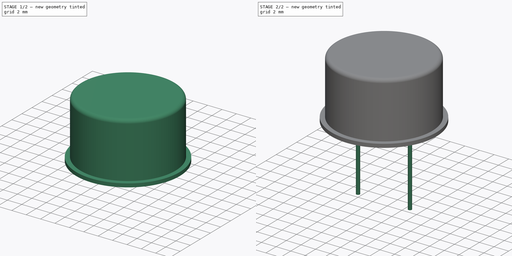
[diagram: build sequence overview — one tinted view per stage of 2, left to right]
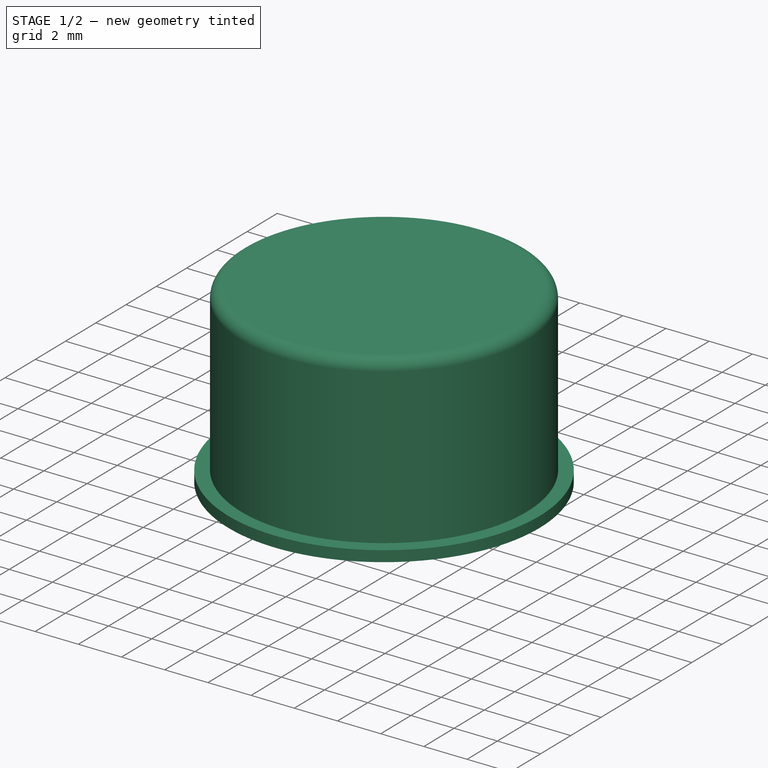
[diagram: stage 1 of 2 — iso view after this stage's code; geometry added in this stage tinted green]
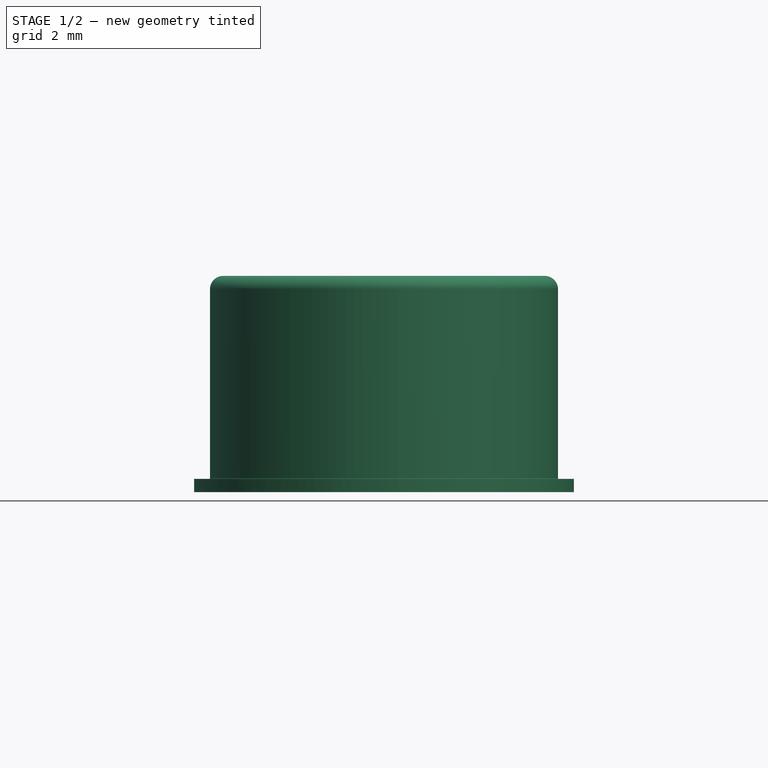
[diagram: stage 1 of 2 — front view after this stage's code; geometry added in this stage tinted green]
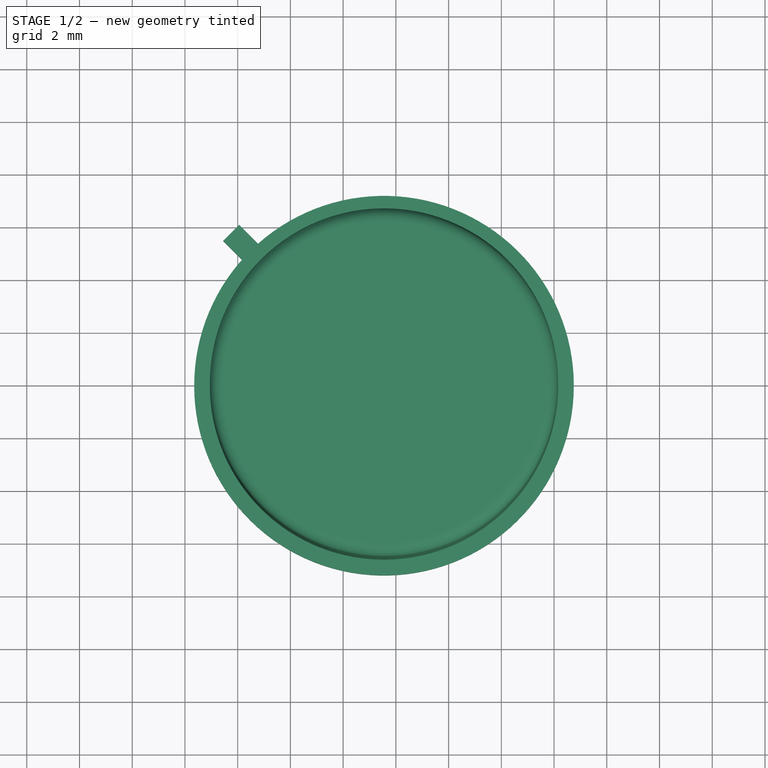
[diagram: stage 1 of 2 — top view after this stage's code; geometry added in this stage tinted green]
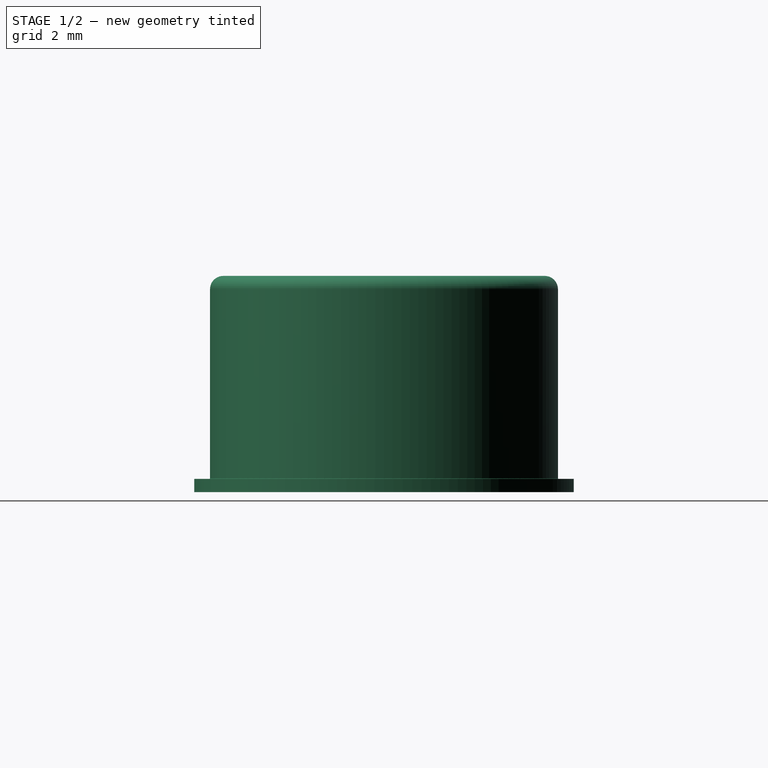
[diagram: stage 1 of 2 — right view after this stage's code; geometry added in this stage tinted green]
FCSTD DOCUMENT  (FreeCAD 0.16R6703 (Git))
Label: TO-8_2Pin
License: All rights reserved
LicenseURL: http://en.wikipedia.org/wiki/All_rights_reserved
objects: Sketcher::SketchObject×3, PartDesign::Pad×2, PartDesign::Revolution×1, Spreadsheet::Sheet×1
note: 9 computed .brp shape members not serialized (recipe doc carries the construction recipe); baked Part::Feature solids carry a one-line shape summary decoded from their .brp

FEATURE [Sketcher::SketchObject] Sketch003
  Placement = pos=(0,0,0) rot=(1,0,0;1.5708rad)
  expr: Constraints[4] = dims.pin_upper_length
  expr: Constraints[7] = dims.height
  expr: Constraints[1] = dims.Dpin / 2
  expr: Constraints[10] = dims.DBot / 2
  expr: Constraints[19] = dims.DTop / 2
  sketch-geometry (9):
    g0: LineSegment [constr] StartX=3.55 StartY=2.55067 StartZ=0 EndX=3.55 EndY=13.2 EndZ=0
    g1: LineSegment StartX=3.55 StartY=5 StartZ=0 EndX=-3.65 EndY=5 EndZ=0
    g2: LineSegment StartX=-3.65 StartY=5 StartZ=0 EndX=-3.65 EndY=5.5 EndZ=0
    g3: LineSegment StartX=3.55 StartY=13.2 StartZ=0 EndX=3.55 EndY=5 EndZ=0
    g4: LineSegment StartX=-3.65 StartY=5.5 StartZ=0 EndX=-3.0687 EndY=5.5 EndZ=0
    g5: LineSegment StartX=-3.05 StartY=5.5187 StartZ=0 EndX=-3.05 EndY=12.7 EndZ=0
    g6: LineSegment StartX=-2.55 StartY=13.2 StartZ=0 EndX=3.55 EndY=13.2 EndZ=0
    g7: ArcOfCircle CenterX=-2.55 CenterY=12.7 CenterZ=0 NormalX=0 NormalY=0 NormalZ=1 Radius=0.5 StartAngle=1.5708 EndAngle=3.14159
    g8: ArcOfCircle CenterX=-3.0687 CenterY=5.5187 CenterZ=0 NormalX=0 NormalY=0 NormalZ=1 Radius=0.0187046 StartAngle=4.71239 EndAngle=6.28319
  constraints (24):
    c: Vertical(g0)
    c: DistanceX(g-1,g0) = 3.55
    c: PointOnObject(g1,g0)
    c: Horizontal(g1)
    c: DistanceY(g-1,g1) = 5
    c: Coincident(g2,g1)
    c: Vertical(g2)
    c: DistanceY(g1,g3) = 8.2
    c: Coincident(g3,g1)
    c: DistanceY(g2,g2) = 0.5
    c: DistanceX(g1,g1) = 7.2
    c: Coincident(g4,g2)
    c: Vertical(g5)
    c: Coincident(g6,g0)
    c: Horizontal(g6)
    c: Tangent(g6,g7) = 1.5708
    c: Tangent(g5,g7) = 1.5708
    c: Tangent(g4,g8) = -1.5708
    c: Tangent(g5,g8) = -1.5708
    c: DistanceX(g5,g0) = 6.6
    c: Vertical(g3)
    c: Coincident(g0,g3)
    c: DistanceY(g5,g6) = 0.5
    c: Horizontal(g4)
FEATURE [PartDesign::Revolution] Revolution
  Angle = 360
  Axis = (0,0,10.6493)
  Base = (3.55,0,2.55067)
  Placement = pos=(0,0,0) rot=(1,0,0;1.5708rad)
  ReferenceAxis = -> Sketch003 [Axis0]
  Sketch = -> Sketch003
FEATURE [Sketcher::SketchObject] Sketch004
  Placement = pos=(0,0,5) rot=(0,0,1;0rad)
  expr: Constraints[1] = dims.Dpin / 2
  expr: Constraints[10] = dims.nibble_w
  expr: Constraints[11] = dims.DBot / 2 + dims.nibble_l
  sketch-geometry (5):
    g0: GeomPoint [constr] X=3.55 Y=0 Z=0
    g1: LineSegment StartX=3.87497 StartY=0.324967 StartZ=0 EndX=8.96614 EndY=5.41614 EndZ=0
    g2: LineSegment StartX=3.22503 StartY=-0.324967 StartZ=0 EndX=8.96614 EndY=5.41614 EndZ=0
    g3: LineSegment StartX=8.96614 StartY=5.41614 StartZ=0 EndX=8.96614 EndY=5.41614 EndZ=0
    g4: LineSegment StartX=3.22503 StartY=-0.324967 StartZ=0 EndX=3.87497 EndY=0.324967 EndZ=0
  constraints (14):
    c: PointOnObject(g0,g-1)
    c: DistanceX(g-1,g0) = 3.55
    c: Coincident(g3,g2)
    c: Coincident(g3,g1)
    c: Coincident(g4,g2)
    c: Coincident(g4,g1)
    c: PointOnObject(g0,g4)
    c: Parallel(g4,g3)
    c: Parallel(g2,g1)
    c: Perpendicular(g2,g3)
    c: Distance(g3) = 0
    c: Distance(g1) = 7.2
    c: Symmetric(g4,g4,g0)
    c: Angle(g4,g-1) = 2.35619
FEATURE [PartDesign::Pad] Pad003
  Length = 0.5
  Length2 = 100
  Placement = pos=(0,0,5) rot=(0,0,1;0rad)
  Sketch = -> Sketch004
  Type = 0
FEATURE [Spreadsheet::Sheet] Spreadsheet  label="dims"
  cells = A1=bottom diameter; B1(DBot)=14.4; A2=top diameter; B2(DTop)=13.2; A3=pin diameter; B3(Dpin)=7.1; A4=height; B4(height)=8.199999999999999; A5=nible; B5(nibble_w)=0; C5(nibble_l)=0; A6=pin diameter; B6(pin_diameter)=0.85; A7=pin length; B7(pin_length)=8; A8=pin upper length; B8(pin_upper_length)=5
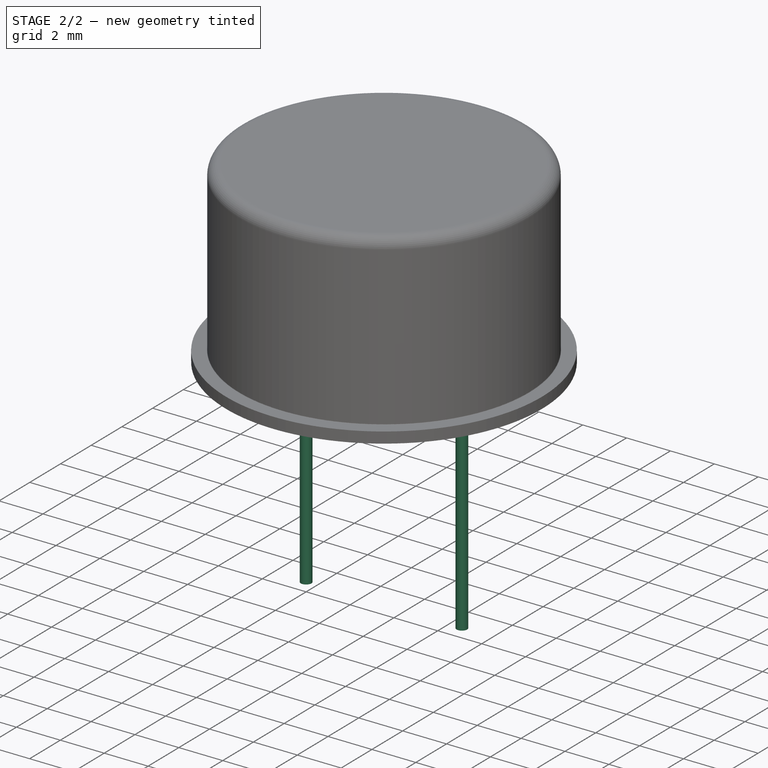
[diagram: stage 2 of 2 — iso view after this stage's code; geometry added in this stage tinted green]
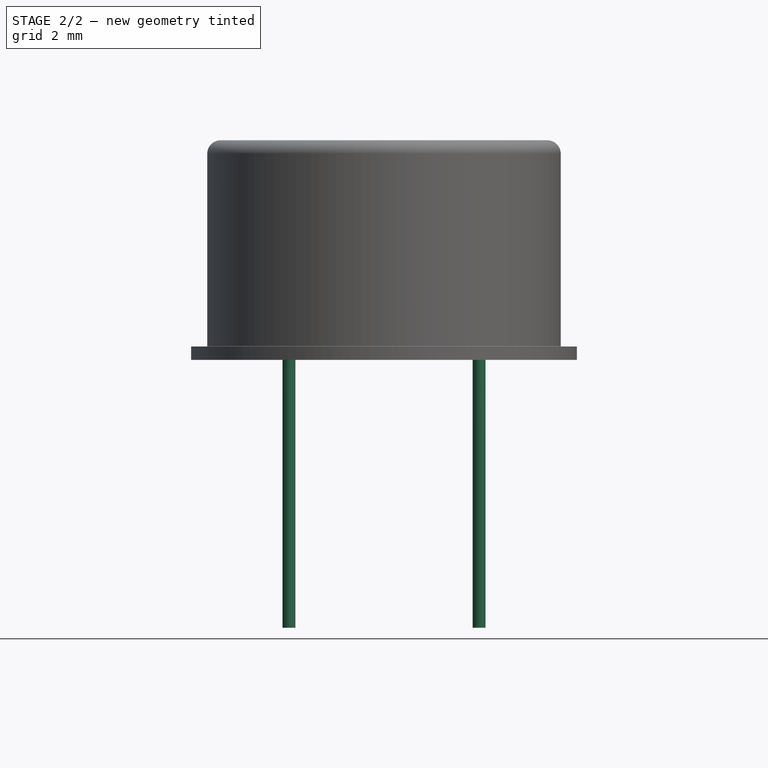
[diagram: stage 2 of 2 — front view after this stage's code; geometry added in this stage tinted green]
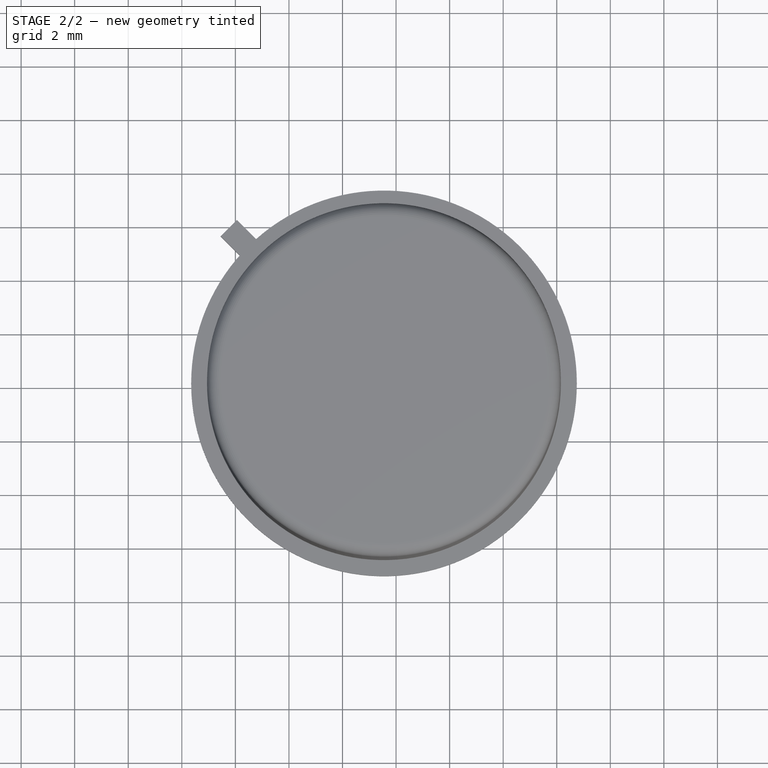
[diagram: stage 2 of 2 — top view after this stage's code; geometry added in this stage tinted green]
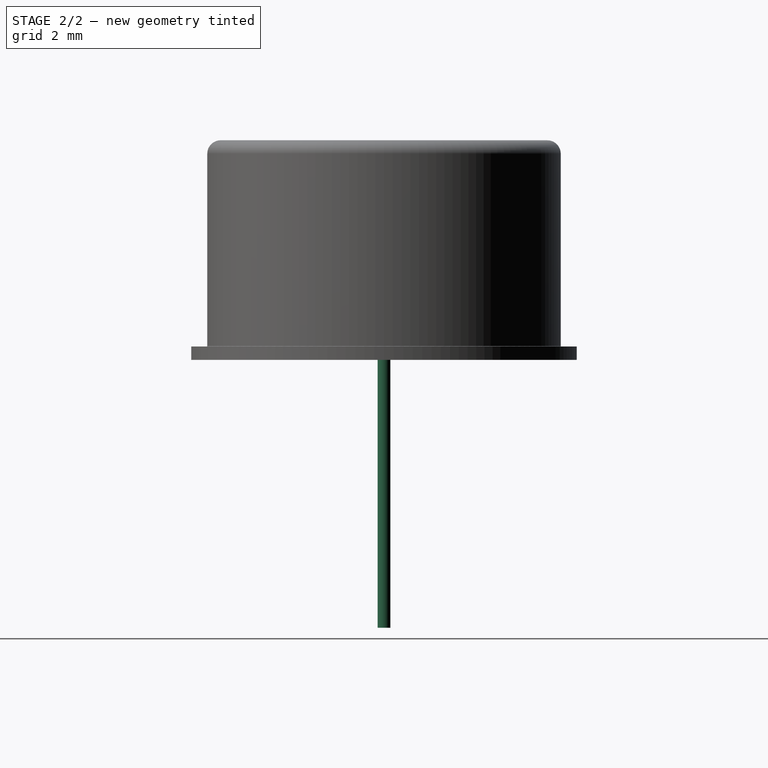
[diagram: stage 2 of 2 — right view after this stage's code; geometry added in this stage tinted green]
FEATURE [Sketcher::SketchObject] Sketch
  Placement = pos=(0,0,5) rot=(0,0,1;0rad)
  expr: Constraints[5] = dims.Dpin / 2
  expr: Constraints[4] = dims.Dpin / 2
  sketch-geometry (3):
    g0: Circle CenterX=0 CenterY=0 CenterZ=0 NormalX=0 NormalY=0 NormalZ=1 Radius=0.24
    g1: Circle CenterX=7.1 CenterY=0 CenterZ=0 NormalX=0 NormalY=0 NormalZ=1 Radius=0.24
    g2: Circle [constr] CenterX=3.55 CenterY=0 CenterZ=0 NormalX=0 NormalY=0 NormalZ=1 Radius=3.55
  constraints (8):
    c: Coincident(g0,g-1)
    c: Radius(g0) = 0.24
    c: Equal(g1,g0)
    c: PointOnObject(g2,g-1)
    c: Radius(g2) = 3.55
    c: DistanceX(g-1,g2) = 3.55
    c: PointOnObject(g1,g2)
    c: PointOnObject(g1,g-1)
FEATURE [PartDesign::Pad] Pad
  Length = 10
  Length2 = 100
  Placement = pos=(0,0,5) rot=(0,0,1;0rad)
  Reversed = true
  Sketch = -> Sketch
  Type = 0
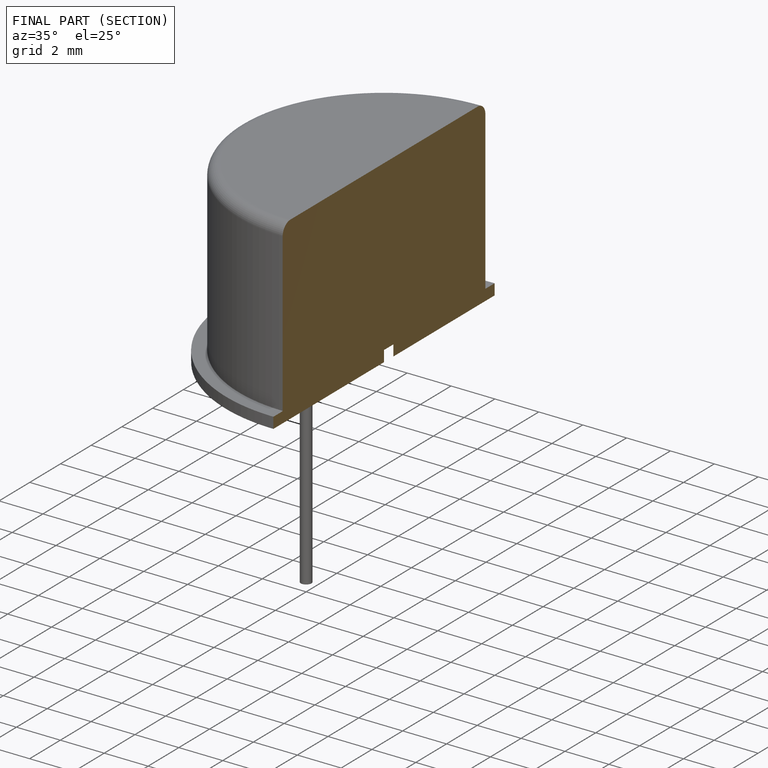
[diagram: finished part — half-section view (interior)]
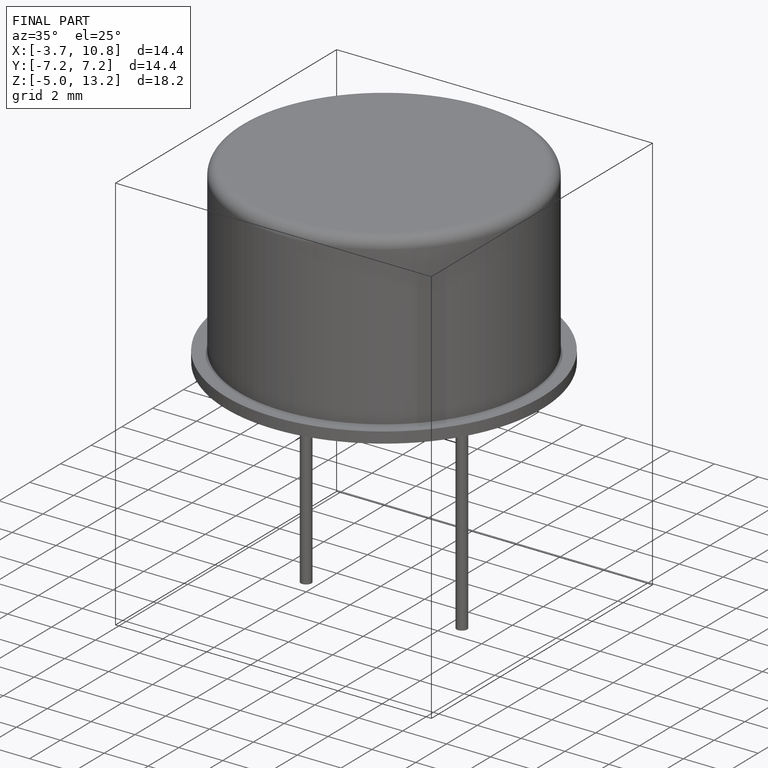
[diagram: finished part — iso view with bounding-box wireframe]
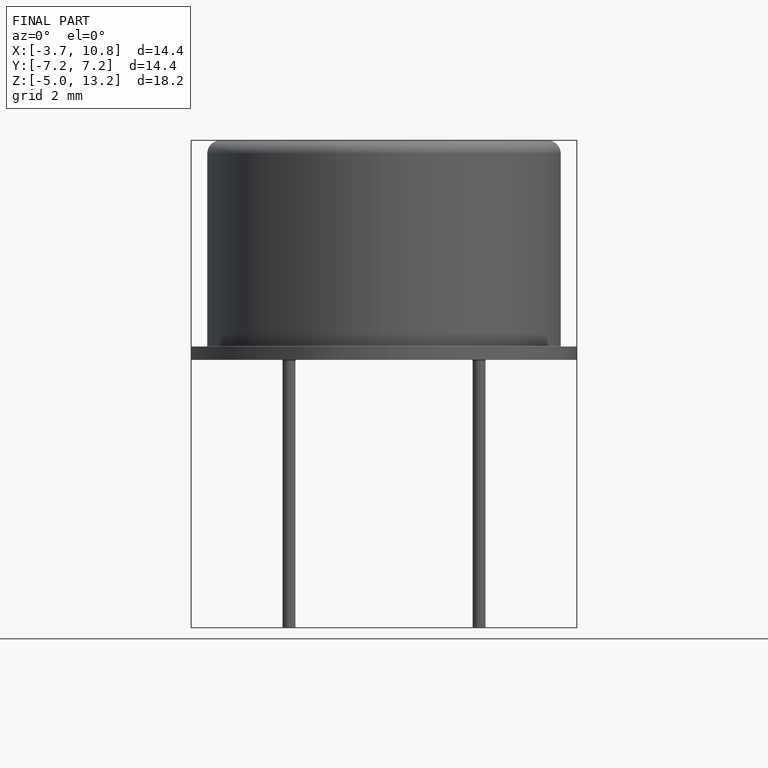
[diagram: finished part — front view with bounding-box wireframe]
